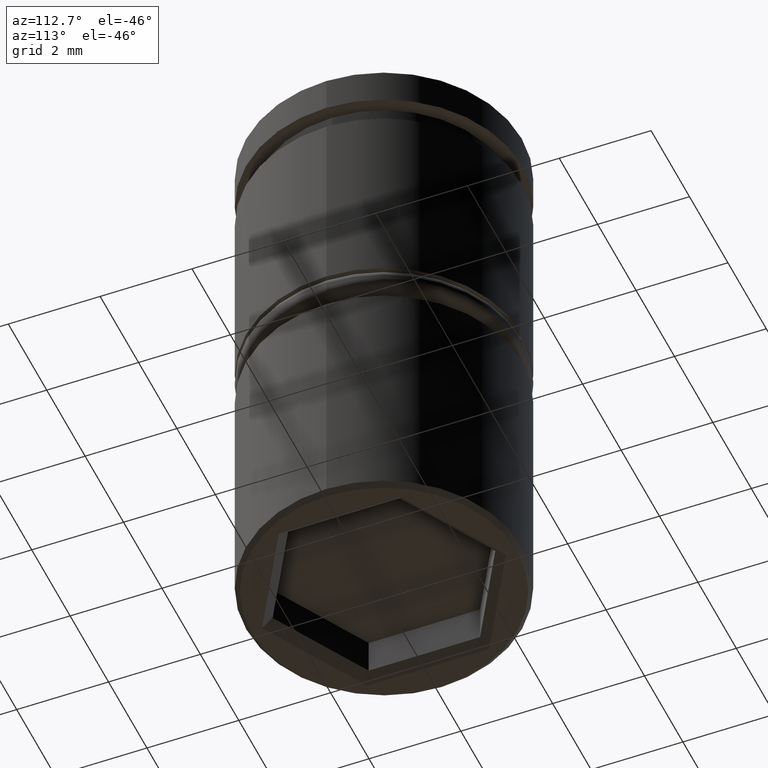
[diagram: clean part render]
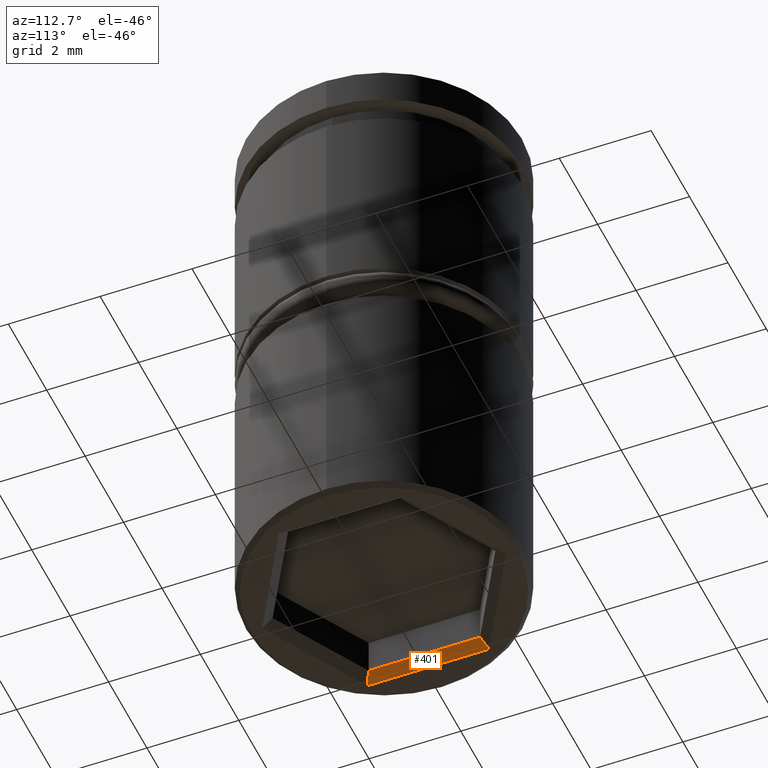
[diagram: same view with one face highlighted and labeled with its STEP entity id]
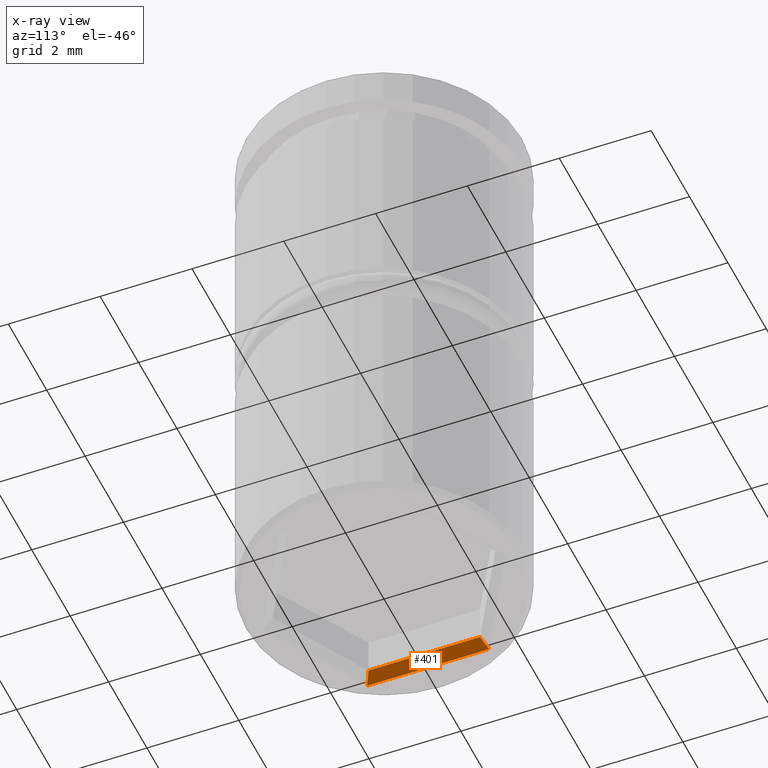
[diagram: x-ray of the same camera — body ghosted, the highlighted face saturated]
A machine part, auxiliary view. The second image highlights one B-rep face of the part: STEP entity #401.
The next image is the same camera in x-ray: the body ghosted, the highlighted face saturated — about 0% of this face is hidden behind the body in this view.
In plain terms, the highlighted planar face has unit normal (0.7071, 0, -0.7071).
Its self-contained STEP definition (entity closure, byte-faithful):
#2 = DIRECTION ( 'NONE',  ( 0.000000000000000000, -1.000000000000000000, 0.000000000000000000 ) ) ;
#65 = VECTOR ( 'NONE', #607, 1000.000000000000000 ) ;
#82 = CARTESIAN_POINT ( 'NONE',  ( -2.099999999999996980, 1.212435565298212392, -11.79999999999999893 ) ) ;
#90 = FACE_OUTER_BOUND ( 'NONE', #1125, .T. ) ;
#141 = ORIENTED_EDGE ( 'NONE', *, *, #381, .F. ) ;
#158 = ORIENTED_EDGE ( 'NONE', *, *, #328, .T. ) ;
#194 = EDGE_CURVE ( 'NONE', #311, #677, #877, .T. ) ;
#215 = LINE ( 'NONE', #816, #241 ) ;
#241 = VECTOR ( 'NONE', #795, 1000.000000000000000 ) ;
#263 = VERTEX_POINT ( 'NONE', #496 ) ;
#311 = VERTEX_POINT ( 'NONE', #1159 ) ;
#328 = EDGE_CURVE ( 'NONE', #263, #677, #543, .T. ) ;
#360 = DIRECTION ( 'NONE',  ( 0.000000000000000000, -1.000000000000000000, 0.000000000000000000 ) ) ;
#381 = EDGE_CURVE ( 'NONE', #263, #611, #1095, .T. ) ;
#401 = ADVANCED_FACE ( 'NONE', ( #90 ), #1085, .T. ) ;
#454 = CARTESIAN_POINT ( 'NONE',  ( -1.499999999999998446, 0.8660254037844378194, -11.20000000000000107 ) ) ;
#474 = ORIENTED_EDGE ( 'NONE', *, *, #194, .F. ) ;
#496 = CARTESIAN_POINT ( 'NONE',  ( -2.299999999999997158, 1.327905619136137583, -12.00000000000000000 ) ) ;
#543 = LINE ( 'NONE', #454, #839 ) ;
#607 = DIRECTION ( 'NONE',  ( 0.000000000000000000, 1.000000000000000000, 0.000000000000000000 ) ) ;
#611 = VERTEX_POINT ( 'NONE', #852 ) ;
#622 = CARTESIAN_POINT ( 'NONE',  ( -2.099999999999996980, -1.212435565298212614, -11.79999999999999893 ) ) ;
#629 = DIRECTION ( 'NONE',  ( 0.7071067811865475727, 0.000000000000000000, -0.7071067811865475727 ) ) ;
#646 = EDGE_CURVE ( 'NONE', #611, #311, #215, .T. ) ;
#677 = VERTEX_POINT ( 'NONE', #82 ) ;
#729 = AXIS2_PLACEMENT_3D ( 'NONE', #622, #629, #2 ) ;
#768 = VECTOR ( 'NONE', #360, 1000.000000000000000 ) ;
#795 = DIRECTION ( 'NONE',  ( 0.6546536707079771977, 0.3779644730092270866, 0.6546536707079771977 ) ) ;
#816 = CARTESIAN_POINT ( 'NONE',  ( -1.499999999999997335, -0.8660254037844378194, -11.19999999999999929 ) ) ;
#839 = VECTOR ( 'NONE', #1178, 1000.000000000000114 ) ;
#852 = CARTESIAN_POINT ( 'NONE',  ( -2.299999999999997158, -1.327905619136137805, -12.00000000000000000 ) ) ;
#872 = CARTESIAN_POINT ( 'NONE',  ( -2.099999999999996980, 1.212435565298212392, -11.79999999999999893 ) ) ;
#877 = LINE ( 'NONE', #872, #65 ) ;
#1075 = CARTESIAN_POINT ( 'NONE',  ( -2.299999999999997158, -1.212435565298212614, -12.00000000000000000 ) ) ;
#1085 = PLANE ( 'NONE',  #729 ) ;
#1095 = LINE ( 'NONE', #1075, #768 ) ;
#1125 = EDGE_LOOP ( 'NONE', ( #158, #474, #1146, #141 ) ) ;
#1146 = ORIENTED_EDGE ( 'NONE', *, *, #646, .F. ) ;
#1159 = CARTESIAN_POINT ( 'NONE',  ( -2.099999999999996980, -1.212435565298212614, -11.79999999999999893 ) ) ;
#1178 = DIRECTION ( 'NONE',  ( 0.6546536707079771977, -0.3779644730092266980, 0.6546536707079771977 ) ) ;